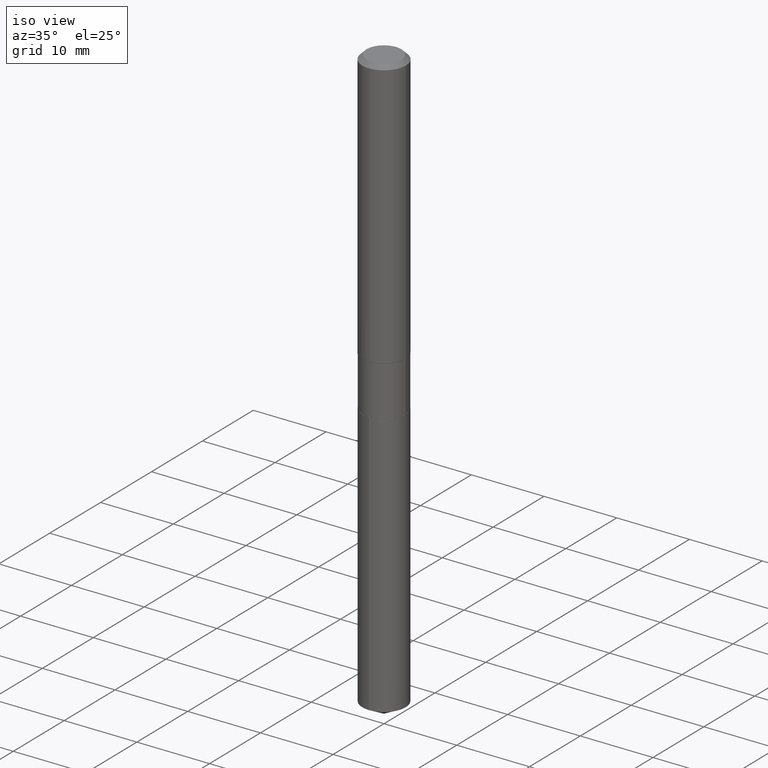
[diagram: clean part render]
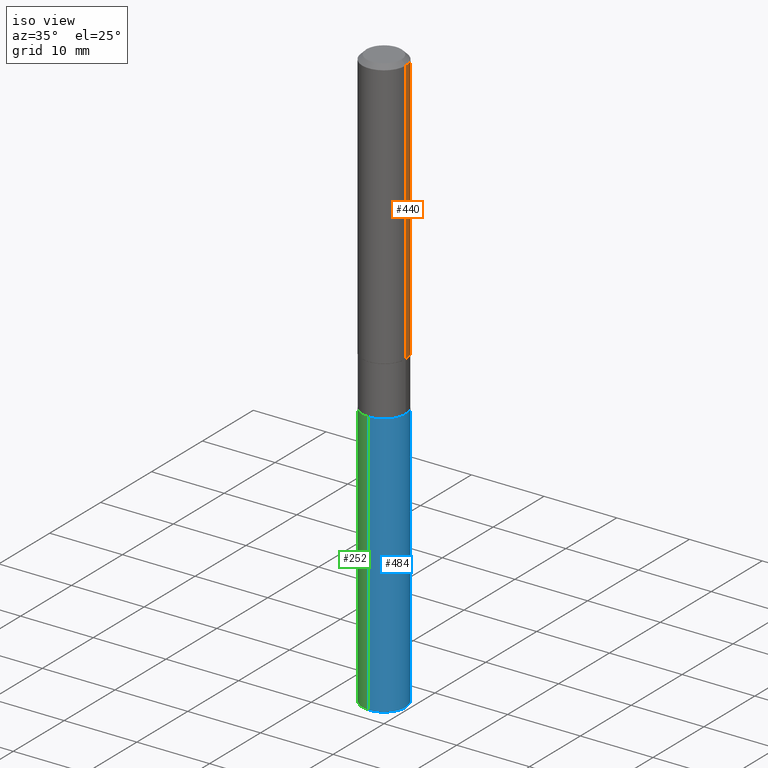
[diagram: same view with three faces highlighted in distinct colors, each labeled with its STEP entity id]
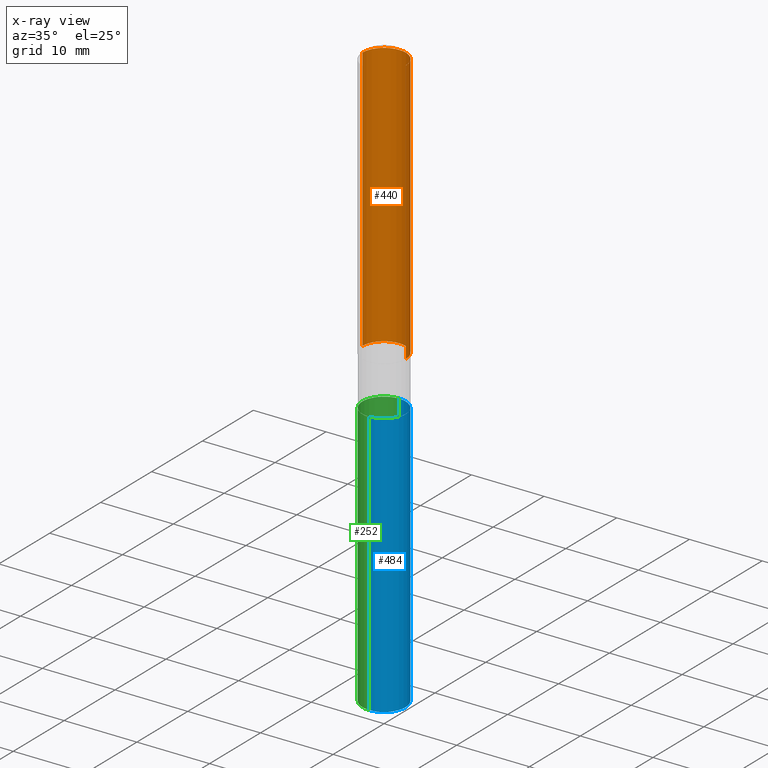
[diagram: x-ray of the same camera — body ghosted, the three highlighted faces saturated]
A machine part, iso view with three faces highlighted in distinct colors.
The next image is the same camera in x-ray (body ghosted, the three faces saturated) — at least one of them is partly hidden behind the body in this view.
Their STEP definitions:

[orange] entity #440 — the highlighted cylindrical surface (edge-blend (fillet) strip) has radius 2.9997 mm, axis along (-0, 0, 1).
#7 = ORIENTED_EDGE ( 'NONE', *, *, #349, .F. ) ;
#10 = LINE ( 'NONE', #421, #111 ) ;
#33 = CIRCLE ( 'NONE', #78, 0.1180999999999999966 ) ;
#51 = AXIS2_PLACEMENT_3D ( 'NONE', #225, #390, #112 ) ;
#52 = VERTEX_POINT ( 'NONE', #166 ) ;
#59 = EDGE_CURVE ( 'NONE', #52, #361, #33, .T. ) ;
#71 = AXIS2_PLACEMENT_3D ( 'NONE', #388, #83, #391 ) ;
#78 = AXIS2_PLACEMENT_3D ( 'NONE', #243, #326, #292 ) ;
#80 = ORIENTED_EDGE ( 'NONE', *, *, #59, .F. ) ;
#81 = DIRECTION ( 'NONE',  ( -2.445468806185136877E-29, 3.491481338843145188E-15, 1.000000000000000000 ) ) ;
#83 = DIRECTION ( 'NONE',  ( -2.445468806185136597E-29, 3.491481338843145583E-15, 1.000000000000000000 ) ) ;
#109 = VERTEX_POINT ( 'NONE', #401 ) ;
#110 = CARTESIAN_POINT ( 'NONE',  ( 0.1181000000000001632, -5.921901498811854753E-15, -1.459899999999999531 ) ) ;
#111 = VECTOR ( 'NONE', #81, 39.37007874015748143 ) ;
#112 = DIRECTION ( 'NONE',  ( 1.000000000000000000, -6.982962677686266711E-15, 4.876176775795936353E-29 ) ) ;
#130 = EDGE_LOOP ( 'NONE', ( #187, #219, #80, #7 ) ) ;
#141 = CARTESIAN_POINT ( 'NONE',  ( -0.1181000000000000799, 8.391509709326788873E-16, -5.809262341591047988E-30 ) ) ;
#148 = EDGE_CURVE ( 'NONE', #109, #361, #263, .T. ) ;
#152 = CARTESIAN_POINT ( 'NONE',  ( -0.1180999999999999966, -1.750690226967611791E-15, -0.02362000000000014088 ) ) ;
#166 = CARTESIAN_POINT ( 'NONE',  ( 0.1180999999999999966, -9.071566814582237199E-16, -0.02362000000000014088 ) ) ;
#187 = ORIENTED_EDGE ( 'NONE', *, *, #290, .T. ) ;
#219 = ORIENTED_EDGE ( 'NONE', *, *, #148, .T. ) ;
#225 = CARTESIAN_POINT ( 'NONE',  ( 0.000000000000000000, 0.000000000000000000, 0.000000000000000000 ) ) ;
#243 = CARTESIAN_POINT ( 'NONE',  ( 5.776197320209327532E-31, -8.246878922347559293E-17, -0.02362000000000014088 ) ) ;
#263 = LINE ( 'NONE', #141, #365 ) ;
#290 = EDGE_CURVE ( 'NONE', #417, #109, #399, .T. ) ;
#292 = DIRECTION ( 'NONE',  ( 1.000000000000000000, -6.982962677686266711E-15, 0.000000000000000000 ) ) ;
#326 = DIRECTION ( 'NONE',  ( -2.445468806185136597E-29, 3.491481338843145583E-15, 1.000000000000000000 ) ) ;
#349 = EDGE_CURVE ( 'NONE', #417, #52, #10, .T. ) ;
#361 = VERTEX_POINT ( 'NONE', #152 ) ;
#365 = VECTOR ( 'NONE', #422, 39.37007874015748143 ) ;
#388 = CARTESIAN_POINT ( 'NONE',  ( 3.570139910149679929E-29, -5.097213606577107280E-15, -1.459899999999999531 ) ) ;
#390 = DIRECTION ( 'NONE',  ( -2.445468806185136597E-29, 3.491481338843145583E-15, 1.000000000000000000 ) ) ;
#391 = DIRECTION ( 'NONE',  ( 1.000000000000000000, -6.982962677686270655E-15, 0.000000000000000000 ) ) ;
#399 = CIRCLE ( 'NONE', #71, 0.1181000000000001632 ) ;
#401 = CARTESIAN_POINT ( 'NONE',  ( -0.1181000000000001632, -4.258062635644426716E-15, -1.459899999999999531 ) ) ;
#417 = VERTEX_POINT ( 'NONE', #110 ) ;
#421 = CARTESIAN_POINT ( 'NONE',  ( 0.1181000000000000799, -8.246878922347486570E-16, 5.758764772215004644E-30 ) ) ;
#422 = DIRECTION ( 'NONE',  ( -2.445468806185136877E-29, 3.491481338843145188E-15, 1.000000000000000000 ) ) ;
#427 = CYLINDRICAL_SURFACE ( 'NONE', #51, 0.1181000000000000799 ) ;
#440 = ADVANCED_FACE ( 'NONE', ( #453 ), #427, .T. ) ;
#453 = FACE_OUTER_BOUND ( 'NONE', #130, .T. ) ;

[blue] entity #484 — the highlighted cylindrical surface (edge-blend (fillet) strip) has radius 2.9769 mm, axis along (-0, 0, 1).
#1 = CARTESIAN_POINT ( 'NONE',  ( 8.327560863108796121E-16, 0.1171999999999939479, -1.730400000000000160 ) ) ;
#4 = CIRCLE ( 'NONE', #262, 0.1171999999999999986 ) ;
#6 = CARTESIAN_POINT ( 'NONE',  ( 7.741833882024007276E-29, -1.105256272999543898E-14, -3.165683654609275255 ) ) ;
#45 = CARTESIAN_POINT ( 'NONE',  ( 4.231639222222760531E-29, -6.041659308734178576E-15, -1.730399999999999938 ) ) ;
#50 = VERTEX_POINT ( 'NONE', #439 ) ;
#69 = ORIENTED_EDGE ( 'NONE', *, *, #204, .T. ) ;
#74 = DIRECTION ( 'NONE',  ( -6.982962677686265922E-15, -1.000000000000000000, 4.661856644478264948E-15 ) ) ;
#96 = VECTOR ( 'NONE', #352, 39.37007874015748143 ) ;
#100 = VERTEX_POINT ( 'NONE', #180 ) ;
#107 = CARTESIAN_POINT ( 'NONE',  ( 4.231639222222760531E-29, -6.041659308734178576E-15, -1.730399999999999938 ) ) ;
#115 = DIRECTION ( 'NONE',  ( -2.445645255227839855E-29, 3.491228653771138888E-15, 1.000000000000000000 ) ) ;
#120 = AXIS2_PLACEMENT_3D ( 'NONE', #107, #115, #233 ) ;
#137 = DIRECTION ( 'NONE',  ( -6.982962677686265922E-15, -1.000000000000000000, 2.330928322239132474E-15 ) ) ;
#144 = LINE ( 'NONE', #1, #156 ) ;
#156 = VECTOR ( 'NONE', #303, 39.37007874015748143 ) ;
#157 = CARTESIAN_POINT ( 'NONE',  ( 8.327560863109149136E-16, 0.1171999999999939340, -1.730400000000000160 ) ) ;
#160 = DIRECTION ( 'NONE',  ( -2.445645255227839855E-29, 3.491228653771138888E-15, 1.000000000000000000 ) ) ;
#164 = CIRCLE ( 'NONE', #120, 0.1171999999999999986 ) ;
#180 = CARTESIAN_POINT ( 'NONE',  ( 8.327560863109148150E-16, 0.1171999999999889519, -3.165683654609275699 ) ) ;
#200 = AXIS2_PLACEMENT_3D ( 'NONE', #45, #160, #137 ) ;
#204 = EDGE_CURVE ( 'NONE', #100, #464, #144, .T. ) ;
#216 = ORIENTED_EDGE ( 'NONE', *, *, #397, .F. ) ;
#233 = DIRECTION ( 'NONE',  ( -6.982962677686265922E-15, -1.000000000000000000, 2.330928322239132474E-15 ) ) ;
#262 = AXIS2_PLACEMENT_3D ( 'NONE', #6, #265, #74 ) ;
#264 = LINE ( 'NONE', #272, #96 ) ;
#265 = DIRECTION ( 'NONE',  ( -2.445645255227839855E-29, 3.491228653771138888E-15, 1.000000000000000000 ) ) ;
#272 = CARTESIAN_POINT ( 'NONE',  ( -8.184032258247879554E-16, -0.1172000000000060493, -1.730399999999999716 ) ) ;
#279 = ORIENTED_EDGE ( 'NONE', *, *, #357, .F. ) ;
#303 = DIRECTION ( 'NONE',  ( -2.445645255227839855E-29, 3.491228653771138888E-15, 1.000000000000000000 ) ) ;
#313 = FACE_OUTER_BOUND ( 'NONE', #438, .T. ) ;
#335 = VERTEX_POINT ( 'NONE', #457 ) ;
#352 = DIRECTION ( 'NONE',  ( -2.445645255227839855E-29, 3.491228653771138888E-15, 1.000000000000000000 ) ) ;
#357 = EDGE_CURVE ( 'NONE', #335, #464, #164, .T. ) ;
#397 = EDGE_CURVE ( 'NONE', #50, #335, #264, .T. ) ;
#428 = EDGE_CURVE ( 'NONE', #50, #100, #4, .T. ) ;
#429 = CYLINDRICAL_SURFACE ( 'NONE', #200, 0.1171999999999999986 ) ;
#434 = ORIENTED_EDGE ( 'NONE', *, *, #428, .T. ) ;
#438 = EDGE_LOOP ( 'NONE', ( #434, #69, #279, #216 ) ) ;
#439 = CARTESIAN_POINT ( 'NONE',  ( -8.184032258247529497E-16, -0.1172000000000110592, -3.165683654609274367 ) ) ;
#457 = CARTESIAN_POINT ( 'NONE',  ( -8.184032258247879554E-16, -0.1172000000000060493, -1.730399999999999716 ) ) ;
#464 = VERTEX_POINT ( 'NONE', #157 ) ;
#484 = ADVANCED_FACE ( 'NONE', ( #313 ), #429, .T. ) ;

[green] entity #252 — the highlighted cylindrical surface (edge-blend (fillet) strip) has radius 2.9769 mm, axis along (-0, 0, 1).
#1 = CARTESIAN_POINT ( 'NONE',  ( 8.327560863108796121E-16, 0.1171999999999939479, -1.730400000000000160 ) ) ;
#18 = AXIS2_PLACEMENT_3D ( 'NONE', #192, #84, #40 ) ;
#22 = EDGE_CURVE ( 'NONE', #100, #50, #354, .T. ) ;
#31 = ORIENTED_EDGE ( 'NONE', *, *, #204, .F. ) ;
#40 = DIRECTION ( 'NONE',  ( -6.982962677686265922E-15, -1.000000000000000000, 2.330928322239132474E-15 ) ) ;
#43 = DIRECTION ( 'NONE',  ( -2.445645255227839855E-29, 3.491228653771138888E-15, 1.000000000000000000 ) ) ;
#50 = VERTEX_POINT ( 'NONE', #439 ) ;
#84 = DIRECTION ( 'NONE',  ( -2.445645255227839855E-29, 3.491228653771138888E-15, 1.000000000000000000 ) ) ;
#85 = CIRCLE ( 'NONE', #18, 0.1171999999999999986 ) ;
#96 = VECTOR ( 'NONE', #352, 39.37007874015748143 ) ;
#100 = VERTEX_POINT ( 'NONE', #180 ) ;
#124 = ORIENTED_EDGE ( 'NONE', *, *, #22, .T. ) ;
#127 = AXIS2_PLACEMENT_3D ( 'NONE', #298, #43, #190 ) ;
#140 = ORIENTED_EDGE ( 'NONE', *, *, #374, .F. ) ;
#144 = LINE ( 'NONE', #1, #156 ) ;
#156 = VECTOR ( 'NONE', #303, 39.37007874015748143 ) ;
#157 = CARTESIAN_POINT ( 'NONE',  ( 8.327560863109149136E-16, 0.1171999999999939340, -1.730400000000000160 ) ) ;
#180 = CARTESIAN_POINT ( 'NONE',  ( 8.327560863109148150E-16, 0.1171999999999889519, -3.165683654609275699 ) ) ;
#190 = DIRECTION ( 'NONE',  ( -6.982962677686265922E-15, -1.000000000000000000, 4.661856644478264948E-15 ) ) ;
#191 = DIRECTION ( 'NONE',  ( -6.982962677686265922E-15, -1.000000000000000000, 2.330928322239132474E-15 ) ) ;
#192 = CARTESIAN_POINT ( 'NONE',  ( 4.231639222222760531E-29, -6.041659308734178576E-15, -1.730399999999999938 ) ) ;
#204 = EDGE_CURVE ( 'NONE', #100, #464, #144, .T. ) ;
#252 = ADVANCED_FACE ( 'NONE', ( #319 ), #273, .T. ) ;
#264 = LINE ( 'NONE', #272, #96 ) ;
#272 = CARTESIAN_POINT ( 'NONE',  ( -8.184032258247879554E-16, -0.1172000000000060493, -1.730399999999999716 ) ) ;
#273 = CYLINDRICAL_SURFACE ( 'NONE', #448, 0.1171999999999999986 ) ;
#298 = CARTESIAN_POINT ( 'NONE',  ( 7.741833882024007276E-29, -1.105256272999543898E-14, -3.165683654609275255 ) ) ;
#303 = DIRECTION ( 'NONE',  ( -2.445645255227839855E-29, 3.491228653771138888E-15, 1.000000000000000000 ) ) ;
#319 = FACE_OUTER_BOUND ( 'NONE', #329, .T. ) ;
#329 = EDGE_LOOP ( 'NONE', ( #31, #124, #412, #140 ) ) ;
#335 = VERTEX_POINT ( 'NONE', #457 ) ;
#352 = DIRECTION ( 'NONE',  ( -2.445645255227839855E-29, 3.491228653771138888E-15, 1.000000000000000000 ) ) ;
#354 = CIRCLE ( 'NONE', #127, 0.1171999999999999986 ) ;
#374 = EDGE_CURVE ( 'NONE', #464, #335, #85, .T. ) ;
#397 = EDGE_CURVE ( 'NONE', #50, #335, #264, .T. ) ;
#412 = ORIENTED_EDGE ( 'NONE', *, *, #397, .T. ) ;
#424 = DIRECTION ( 'NONE',  ( -2.445645255227839855E-29, 3.491228653771138888E-15, 1.000000000000000000 ) ) ;
#439 = CARTESIAN_POINT ( 'NONE',  ( -8.184032258247529497E-16, -0.1172000000000110592, -3.165683654609274367 ) ) ;
#448 = AXIS2_PLACEMENT_3D ( 'NONE', #466, #424, #191 ) ;
#457 = CARTESIAN_POINT ( 'NONE',  ( -8.184032258247879554E-16, -0.1172000000000060493, -1.730399999999999716 ) ) ;
#464 = VERTEX_POINT ( 'NONE', #157 ) ;
#466 = CARTESIAN_POINT ( 'NONE',  ( 4.231639222222760531E-29, -6.041659308734178576E-15, -1.730399999999999938 ) ) ;